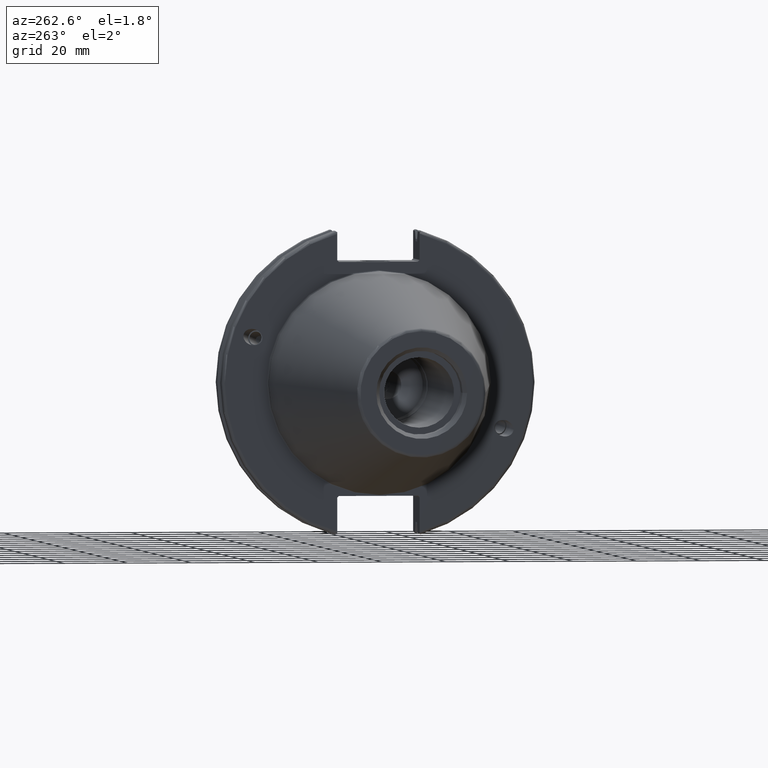
[diagram: clean part render]
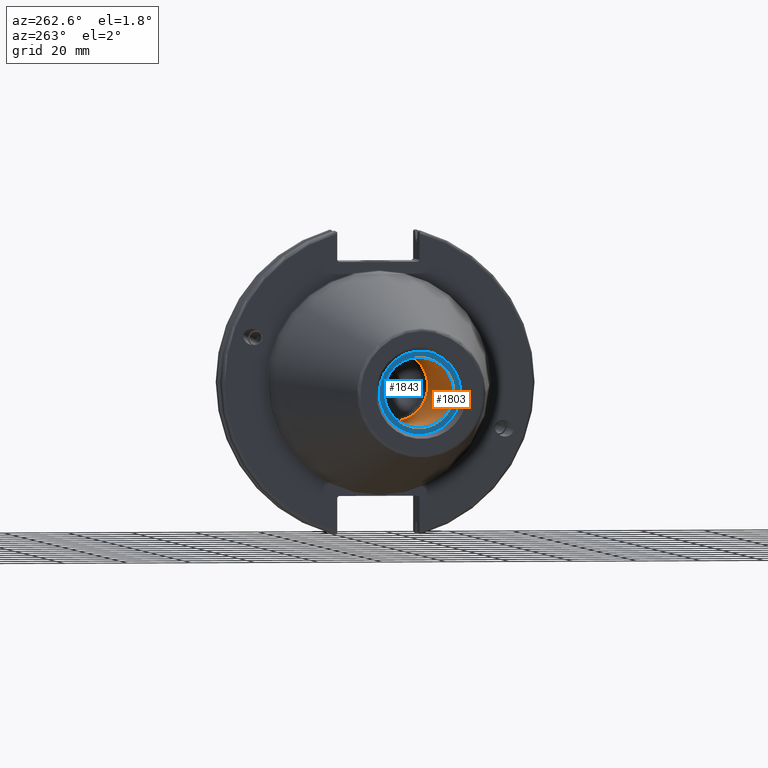
[diagram: same view with the hole feature highlighted: cylindrical wall and planar end face, labeled with their STEP entity ids]
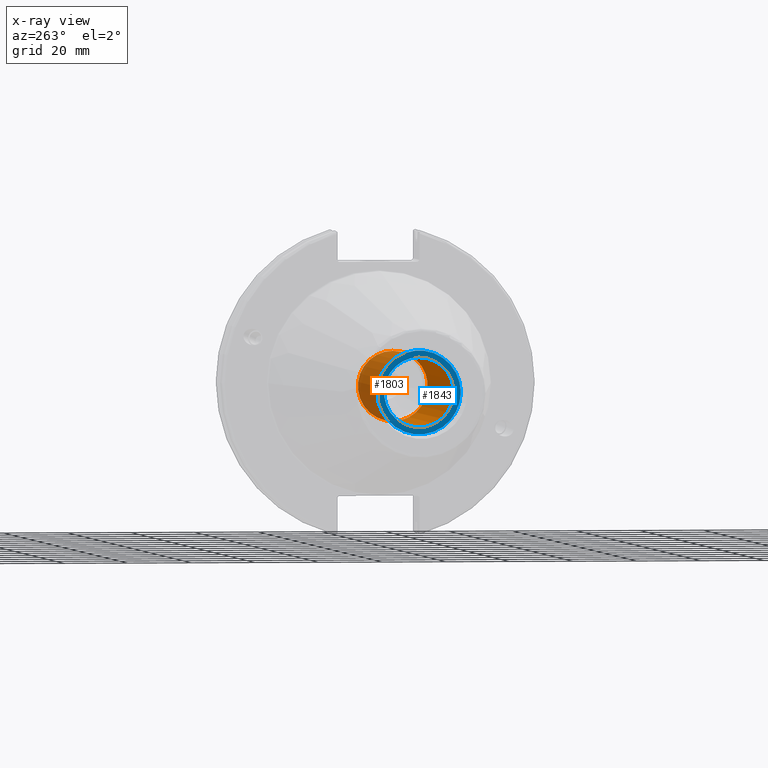
[diagram: x-ray of the same camera — body ghosted, the hole faces saturated]
A machine part, auxiliary view. The highlighted faces form one hole feature of diameter 21.971 mm: the cylindrical wall (entity #1803, orange) and its adjacent planar end face (entity #1843, blue) — they share a circular edge in the B-rep.
The next image is the same camera in x-ray (body ghosted, the hole faces saturated) — the bore reads through the body.
Wall:
#217=FACE_OUTER_BOUND('',#332,.T.);
#332=EDGE_LOOP('',(#1453,#1454,#1455,#1456));
#428=LINE('',#3345,#529);
#529=VECTOR('',#2425,10.9855);
#672=CIRCLE('',#2014,10.9855);
#673=CIRCLE('',#2016,10.9855);
#820=VERTEX_POINT('',#3339);
#821=VERTEX_POINT('',#3343);
#1049=EDGE_CURVE('',#820,#820,#672,.T.);
#1051=EDGE_CURVE('',#821,#821,#673,.T.);
#1052=EDGE_CURVE('',#821,#820,#428,.T.);
#1453=ORIENTED_EDGE('',*,*,#1051,.F.);
#1454=ORIENTED_EDGE('',*,*,#1052,.T.);
#1455=ORIENTED_EDGE('',*,*,#1049,.F.);
#1456=ORIENTED_EDGE('',*,*,#1052,.F.);
#1739=CYLINDRICAL_SURFACE('',#2015,10.9855);
#1803=ADVANCED_FACE('',(#217),#1739,.F.);
#2014=AXIS2_PLACEMENT_3D('',#3340,#2418,#2419);
#2015=AXIS2_PLACEMENT_3D('',#3342,#2421,#2422);
#2016=AXIS2_PLACEMENT_3D('',#3344,#2423,#2424);
#2418=DIRECTION('center_axis',(-1.,0.,0.));
#2419=DIRECTION('ref_axis',(0.,0.,1.));
#2421=DIRECTION('center_axis',(-1.,0.,0.));
#2422=DIRECTION('ref_axis',(0.,0.,1.));
#2423=DIRECTION('center_axis',(1.,0.,0.));
#2424=DIRECTION('ref_axis',(0.,0.,1.));
#2425=DIRECTION('',(1.,0.,0.));
#3339=CARTESIAN_POINT('',(-31.6,-1.34533574120333E-15,-10.9855));
#3340=CARTESIAN_POINT('Origin',(-31.6,0.,0.));
#3342=CARTESIAN_POINT('Origin',(-66.6,0.,0.));
#3343=CARTESIAN_POINT('',(-95.25,1.34533574120333E-15,-10.9855));
#3344=CARTESIAN_POINT('Origin',(-95.25,0.,0.));
#3345=CARTESIAN_POINT('',(-66.6,-1.34533574120333E-15,-10.9855));
End face:
#67=PLANE('',#2082);
#122=FACE_BOUND('',#378,.T.);
#257=FACE_OUTER_BOUND('',#377,.T.);
#377=EDGE_LOOP('',(#1684));
#378=EDGE_LOOP('',(#1685));
#673=CIRCLE('',#2016,10.9855);
#700=CIRCLE('',#2083,13.1);
#821=VERTEX_POINT('',#3343);
#888=VERTEX_POINT('',#3669);
#1051=EDGE_CURVE('',#821,#821,#673,.T.);
#1158=EDGE_CURVE('',#888,#888,#700,.T.);
#1684=ORIENTED_EDGE('',*,*,#1158,.F.);
#1685=ORIENTED_EDGE('',*,*,#1051,.T.);
#1843=ADVANCED_FACE('',(#257,#122),#67,.T.);
#2016=AXIS2_PLACEMENT_3D('',#3344,#2423,#2424);
#2082=AXIS2_PLACEMENT_3D('',#3668,#2611,#2612);
#2083=AXIS2_PLACEMENT_3D('',#3670,#2613,#2614);
#2423=DIRECTION('center_axis',(1.,0.,0.));
#2424=DIRECTION('ref_axis',(0.,0.,1.));
#2611=DIRECTION('center_axis',(-1.,0.,0.));
#2612=DIRECTION('ref_axis',(0.,0.,1.));
#2613=DIRECTION('center_axis',(1.,0.,0.));
#2614=DIRECTION('ref_axis',(0.,0.,-1.));
#3343=CARTESIAN_POINT('',(-95.25,1.34533574120333E-15,-10.9855));
#3344=CARTESIAN_POINT('Origin',(-95.25,0.,0.));
#3668=CARTESIAN_POINT('Origin',(-95.25,13.1,0.));
#3669=CARTESIAN_POINT('',(-95.25,-13.1,-1.60428730688303E-15));
#3670=CARTESIAN_POINT('Origin',(-95.25,0.,0.));